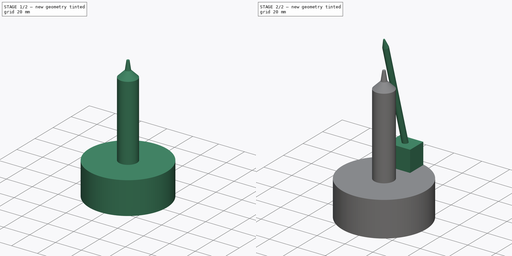
[diagram: build sequence overview — one tinted view per stage of 2, left to right]
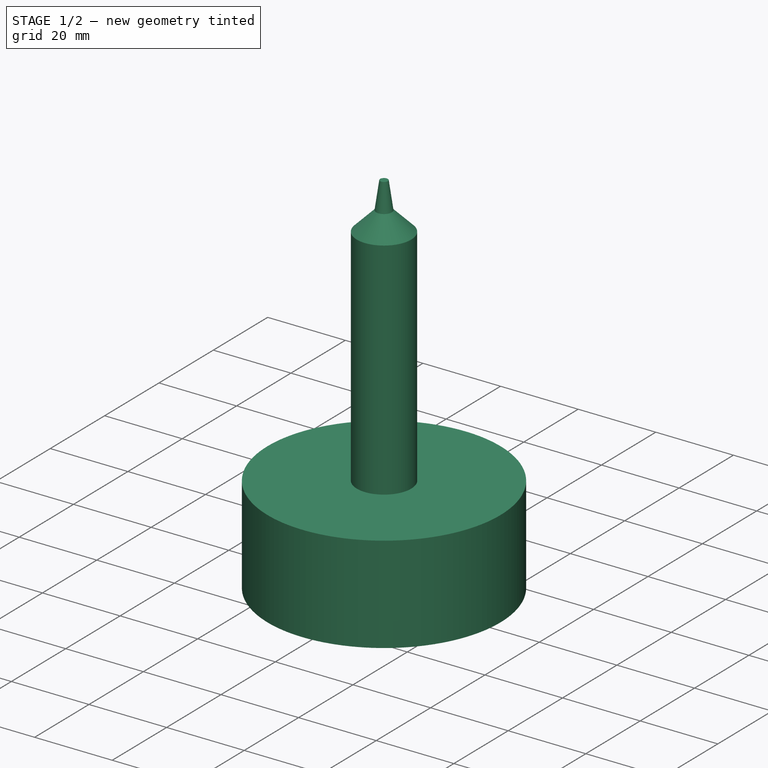
[diagram: stage 1 of 2 — iso view after this stage's code; geometry added in this stage tinted green]
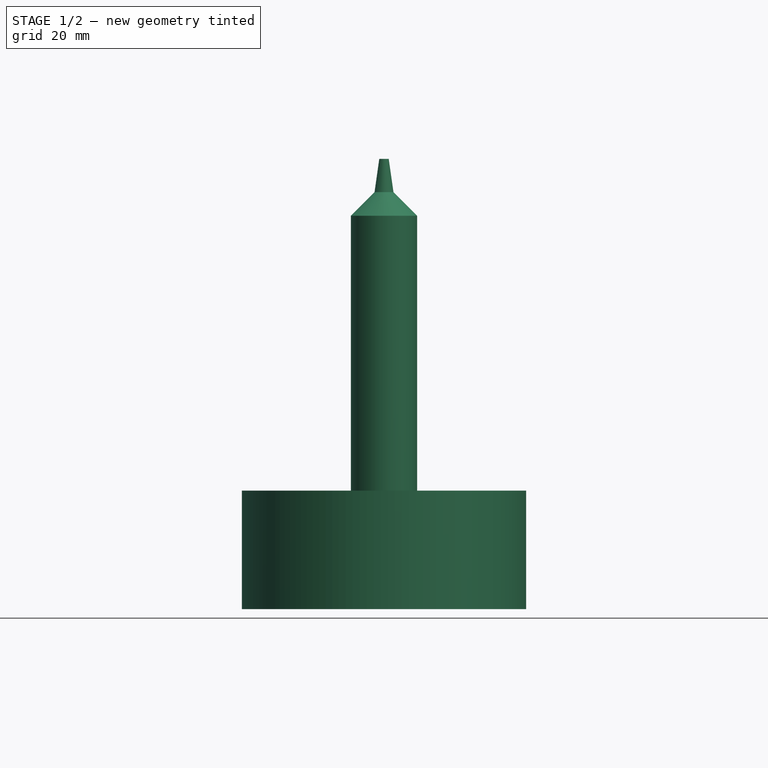
[diagram: stage 1 of 2 — front view after this stage's code; geometry added in this stage tinted green]
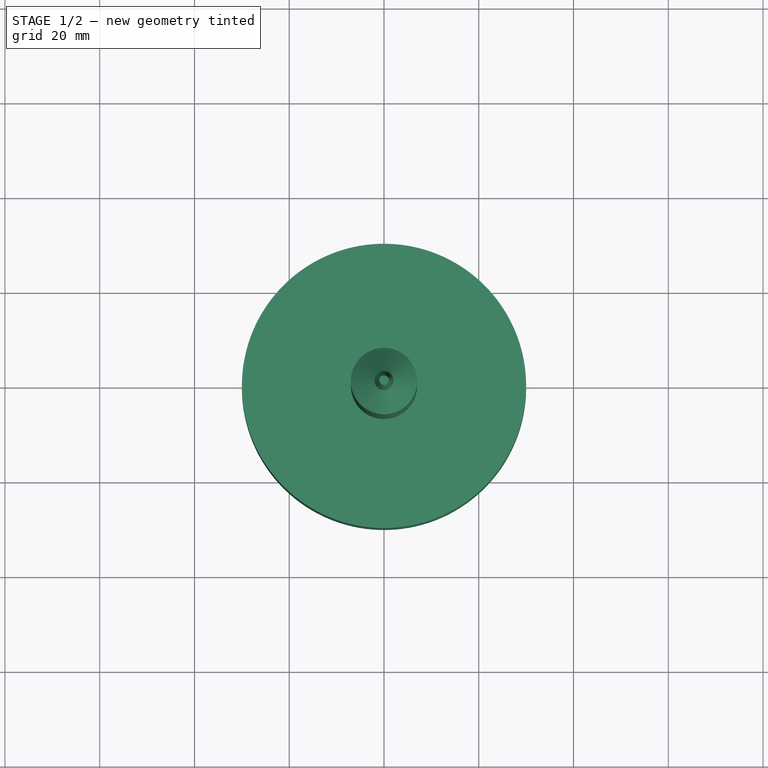
[diagram: stage 1 of 2 — top view after this stage's code; geometry added in this stage tinted green]
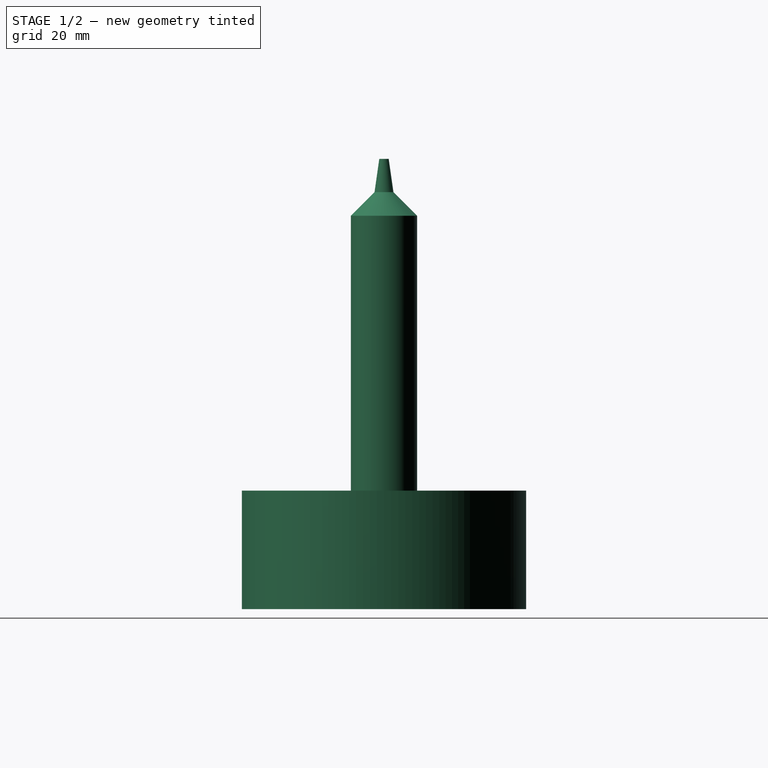
[diagram: stage 1 of 2 — right view after this stage's code; geometry added in this stage tinted green]
FCSTD DOCUMENT  (FreeCAD 0.19R)
Label: link_6
License: All rights reserved
LicenseURL: http://en.wikipedia.org/wiki/All_rights_reserved
objects: Sketcher::SketchObject×4, PartDesign::Pad×2, PartDesign::Revolution×2, PartDesign::Body×1
note: 13 computed .brp shape members not serialized (recipe doc carries the construction recipe); baked Part::Feature solids carry a one-line shape summary decoded from their .brp

FEATURE [Sketcher::SketchObject] Sketch001
  FullyConstrained = true
  MapMode = 5
  Placement = pos=(0,0,0) rot=(1,0,0;1.5708rad)
  Support = -> [XZ_Plane]
  sketch-geometry (6):
    g0: LineSegment StartX=7 StartY=0 StartZ=0 EndX=7 EndY=58 EndZ=0
    g1: LineSegment StartX=7 StartY=58 StartZ=0 EndX=2 EndY=63 EndZ=0
    g2: LineSegment StartX=7 StartY=0 StartZ=0 EndX=0 EndY=0 EndZ=0
    g3: LineSegment StartX=2 StartY=63 StartZ=0 EndX=1 EndY=70 EndZ=0
    g4: LineSegment StartX=1 StartY=70 StartZ=0 EndX=0 EndY=70 EndZ=0
    g5: LineSegment StartX=0 StartY=70 StartZ=0 EndX=0 EndY=0 EndZ=0
  constraints (18):
    c: PointOnObject(g0,g-1)
    c: Vertical(g0)
    c: Coincident(g1,g0)
    c: PointOnObject(g2,g-1)
    c: Coincident(g2,g0)
    c: DistanceX(g2,g2) = 7
    c: DistanceY(g0,g1) = 5
    c: Coincident(g3,g1)
    c: Coincident(g4,g3)
    c: PointOnObject(g4,g-2)
    c: Coincident(g5,g4)
    c: Coincident(g5,g2)
    c: Vertical(g5)
    c: DistanceX(g4,g4) = 1
    c: DistanceY(g1,g3) = 7
    c: Horizontal(g4)
    c: DistanceY(g2,g4) = 70
    c: DistanceX(g4,g1) = 2
FEATURE [Sketcher::SketchObject] Sketch
  FullyConstrained = true
  MapMode = 5
  Support = -> [XY_Plane]
  sketch-geometry (1):
    g0: Circle CenterX=0 CenterY=0 CenterZ=0 NormalX=0 NormalY=0 NormalZ=1 AngleXU=0 Radius=30
  constraints (2):
    c: Coincident(g0,g-1)
    c: Diameter(g0) = 60
FEATURE [PartDesign::Pad] Pad
  AllowMultiFace = false
  Direction = (1,1,1)
  Length = 25
  Length2 = 100
  Profile = -> Sketch
  Reversed = true
  Type = 0
FEATURE [PartDesign::Revolution] Revolution
  Angle = 360
  Axis = (0,-2e-16,1)
  Base = (0,0,0)
  BaseFeature = -> Pad
  Profile = -> Sketch001
  ReferenceAxis = -> Sketch001 [V_Axis]
  Reversed = true
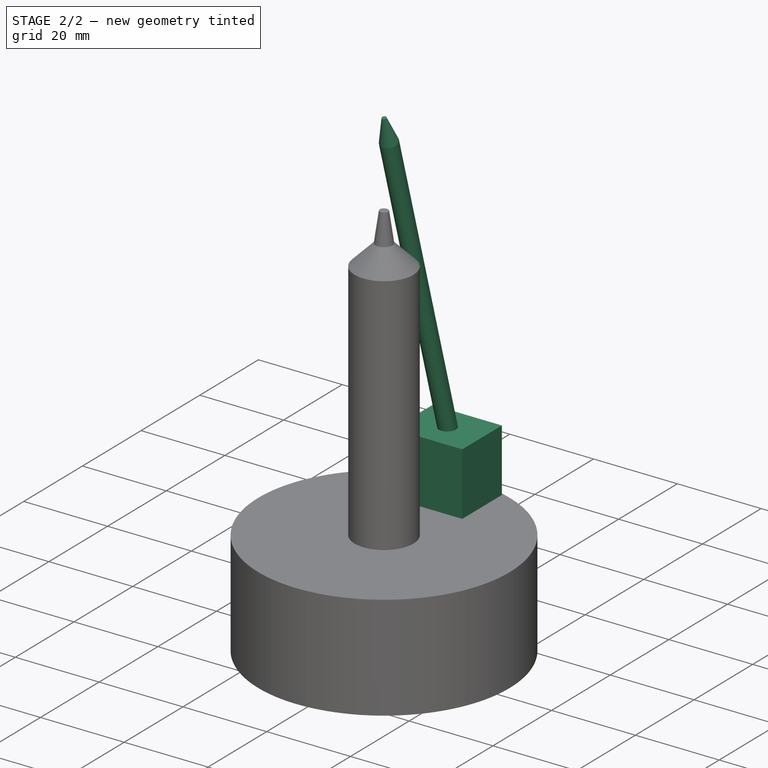
[diagram: stage 2 of 2 — iso view after this stage's code; geometry added in this stage tinted green]
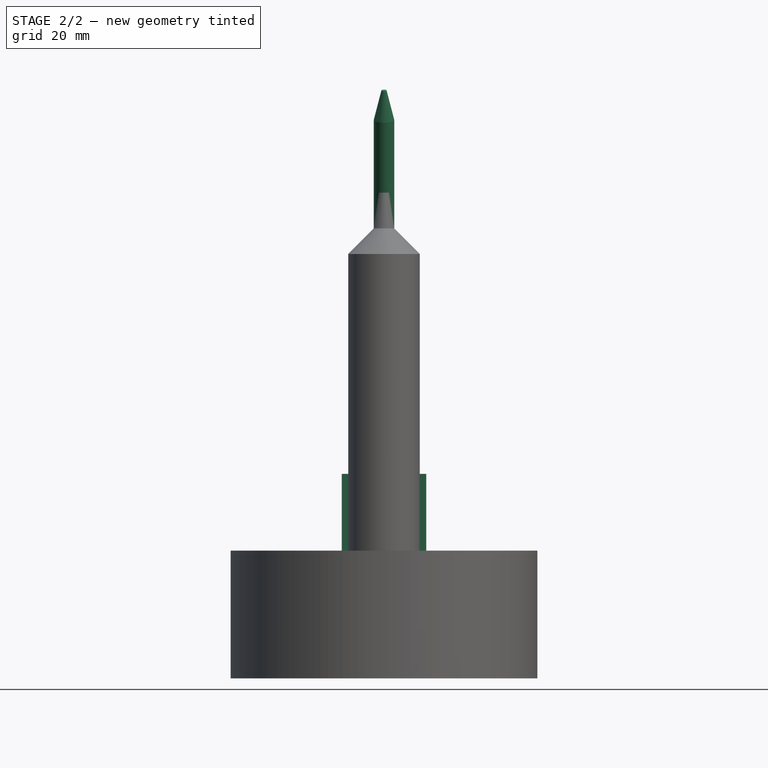
[diagram: stage 2 of 2 — front view after this stage's code; geometry added in this stage tinted green]
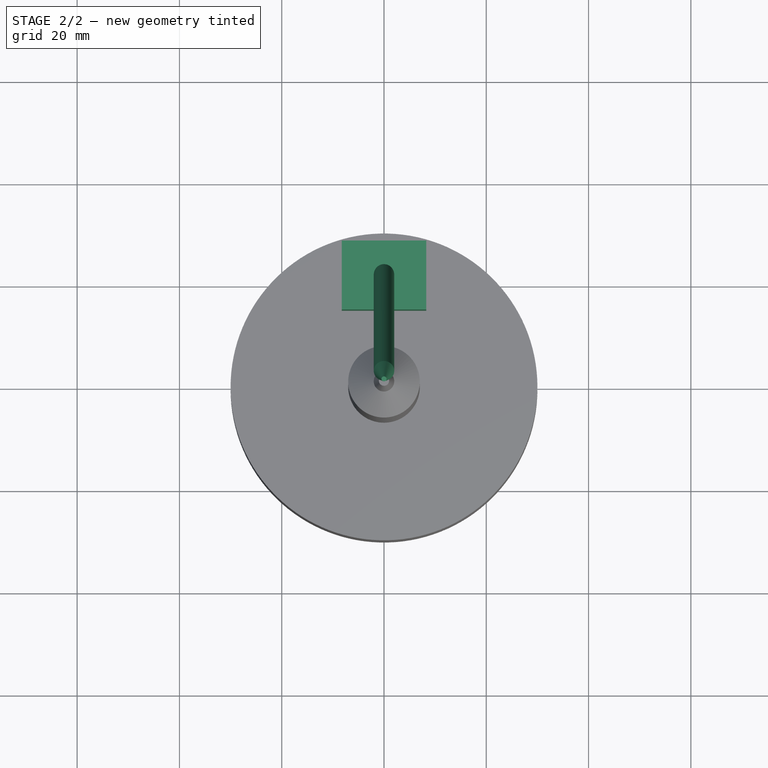
[diagram: stage 2 of 2 — top view after this stage's code; geometry added in this stage tinted green]
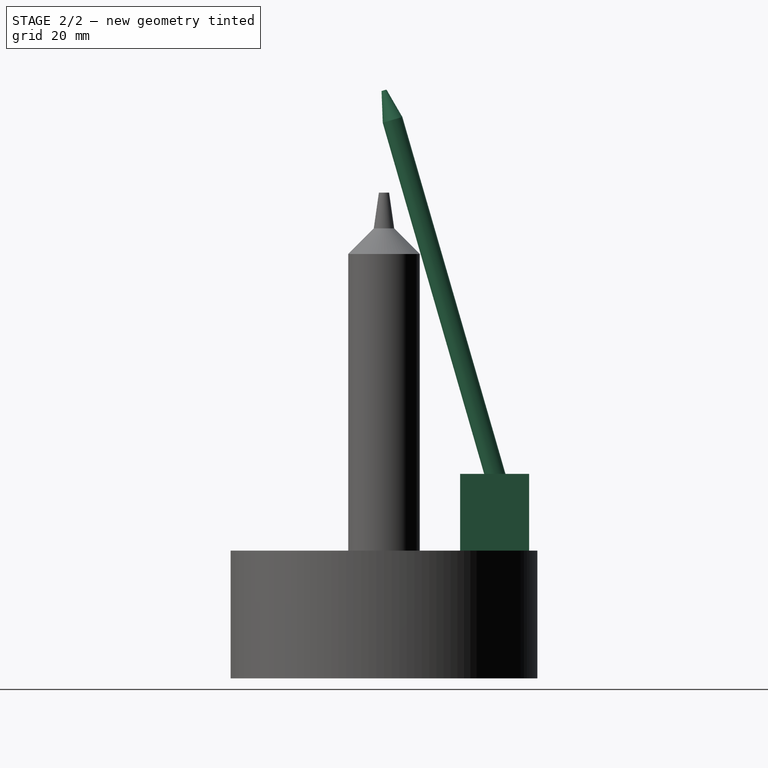
[diagram: stage 2 of 2 — right view after this stage's code; geometry added in this stage tinted green]
FEATURE [Sketcher::SketchObject] Sketch002
  FullyConstrained = false
  MapMode = 5
  Placement = pos=(0,0,0) rot=(0.57735,0.57735,0.57735;2.0944rad)
  Support = -> [YZ_Plane]
  sketch-geometry (6):
    g0: LineSegment StartX=26 StartY=0 StartZ=0 EndX=0 EndY=90 EndZ=0
    g1: LineSegment StartX=0 StartY=90 StartZ=0 EndX=0.480357 EndY=90.1388 EndZ=0
    g2: LineSegment StartX=0.480357 StartY=90.1388 StartZ=0 EndX=3.59158 EndY=84.7738 EndZ=0
    g3: LineSegment StartX=3.59158 StartY=84.7738 StartZ=0 EndX=28.0818 EndY=0 EndZ=0
    g4: LineSegment StartX=28.0818 StartY=0 StartZ=0 EndX=26 EndY=0 EndZ=0
    g5: LineSegment StartX=-6.34635 StartY=111.968 StartZ=0 EndX=32.0553 EndY=-20.9606 EndZ=0
  constraints (15):
    c: PointOnObject(g0,g-1)
    c: DistanceY(g-1,g0) = 90
    c: PointOnObject(g0,g-2)
    c: Coincident(g1,g0)
    c: Coincident(g2,g1)
    c: Coincident(g3,g2)
    c: PointOnObject(g3,g-1)
    c: Coincident(g4,g3)
    c: Coincident(g4,g0)
    c: Parallel(g0,g3)
    c: Perpendicular(g0,g1)
    c: Distance(g1) = 0.5
    c: Distance(g2,g0) = 2
    c: Tangent(g5,g0)
    c: DistanceX(g-1,g0) = 26
FEATURE [PartDesign::Revolution] Revolution001
  Angle = 360
  Axis = (4.23e-14,38.4016,-132.929)
  Base = (-2.7e-14,-6.34635,111.968)
  BaseFeature = -> Revolution
  Profile = -> Sketch002
  ReferenceAxis = -> Sketch002 [Axis0]
FEATURE [Sketcher::SketchObject] Sketch003
  ExternalGeometry = -> [Revolution001]
  FullyConstrained = false
  MapMode = 5
  Support = -> [Revolution001]
  sketch-geometry (4):
    g0: LineSegment StartX=-8.26962 StartY=28.3752 StartZ=0 EndX=8.26962 EndY=28.3752 EndZ=0
    g1: LineSegment StartX=8.26962 StartY=28.3752 StartZ=0 EndX=8.26962 EndY=14.8828 EndZ=0
    g2: LineSegment StartX=8.26962 StartY=14.8828 StartZ=0 EndX=-8.26962 EndY=14.8828 EndZ=0
    g3: LineSegment StartX=-8.26962 StartY=14.8828 StartZ=0 EndX=-8.26962 EndY=28.3752 EndZ=0
  constraints (8):
    c: Coincident(g0,g1)
    c: Coincident(g1,g2)
    c: Coincident(g2,g3)
    c: Coincident(g3,g0)
    c: Horizontal(g2)
    c: Vertical(g1)
    c: Vertical(g3)
    c: Symmetric(g0,g0,g-2)
FEATURE [PartDesign::Pad] Pad001
  BaseFeature = -> Revolution001
  Direction = (1,1,1)
  Length = 15
  Length2 = 100
  Profile = -> Sketch003
  Type = 0
FEATURE [PartDesign::Body] Body
  Group = -> [Sketch,Pad,Sketch001,Revolution,Sketch002,Revolution001,Sketch003,Pad001]
  Origin = -> Origin
  Tip = -> Pad001
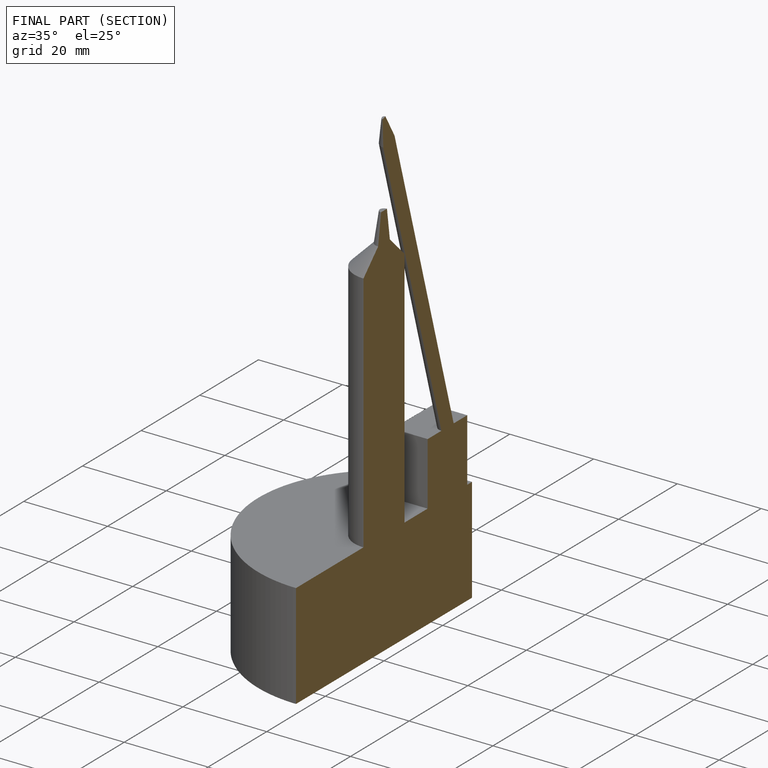
[diagram: finished part — half-section view (interior)]
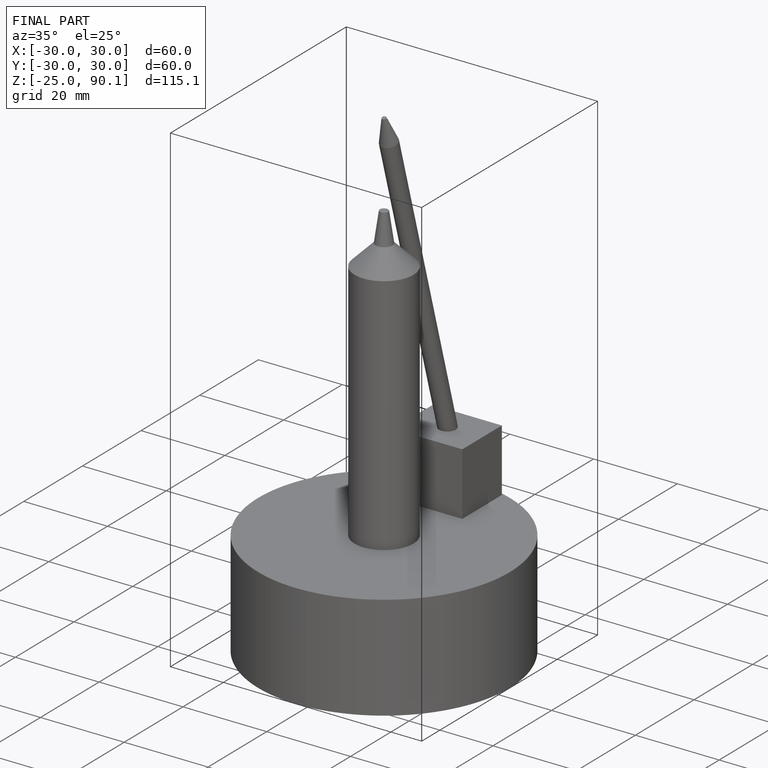
[diagram: finished part — iso view with bounding-box wireframe]
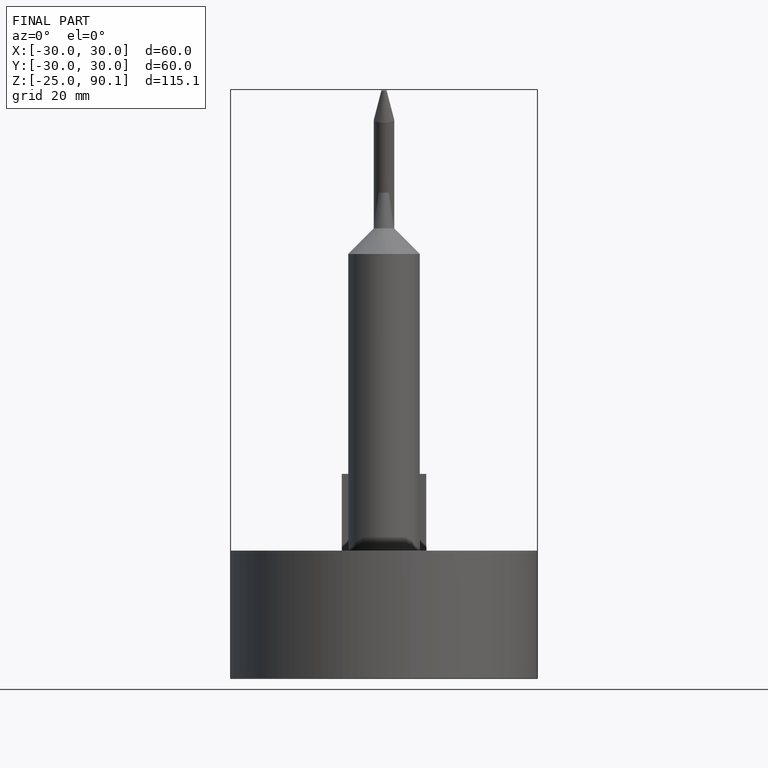
[diagram: finished part — front view with bounding-box wireframe]
